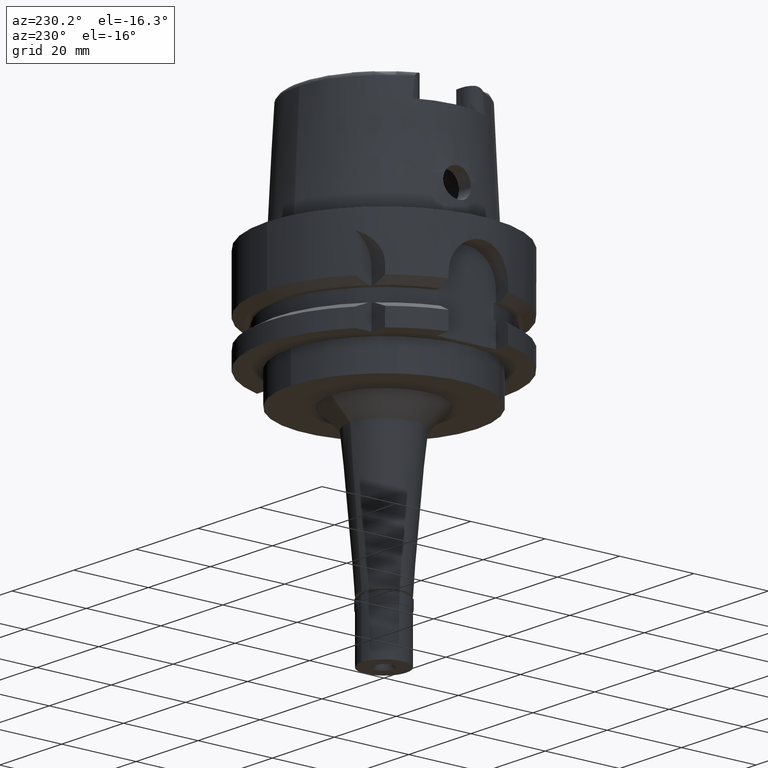
[diagram: clean part render]
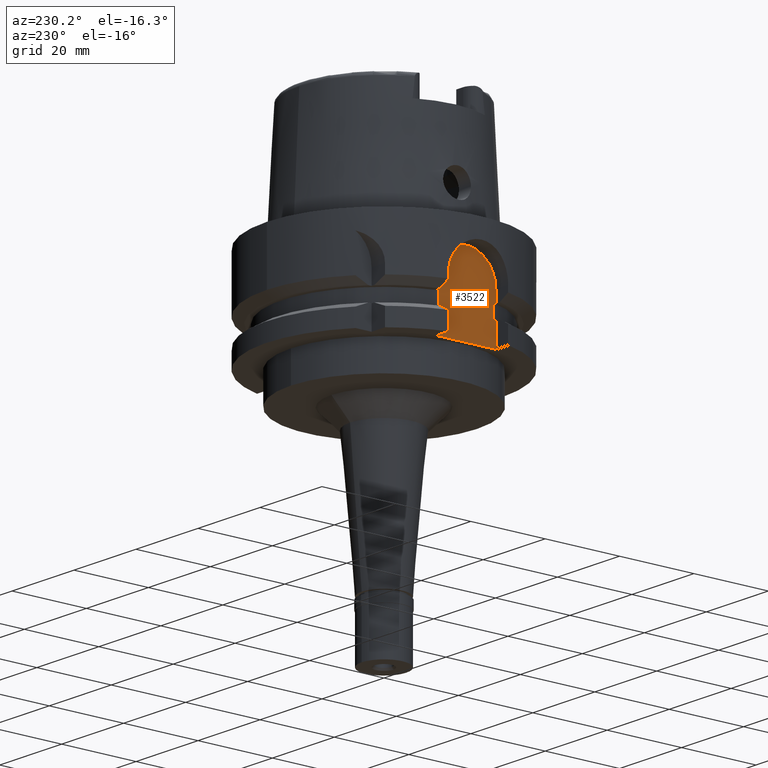
[diagram: same view with one face highlighted and labeled with its STEP entity id]
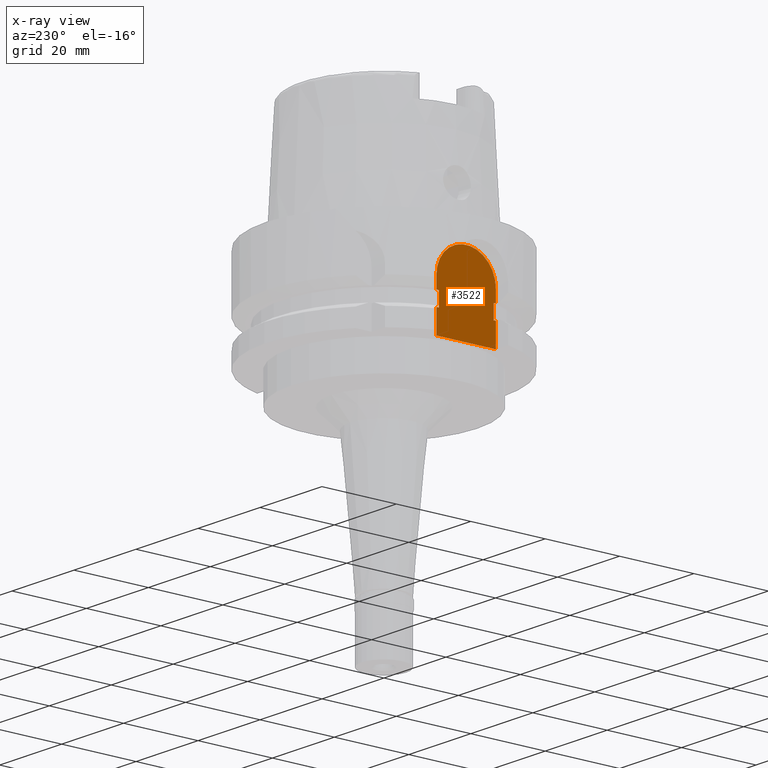
[diagram: x-ray of the same camera — body ghosted, the highlighted face saturated]
A machine part, auxiliary view. The second image highlights one B-rep face of the part: STEP entity #3522.
The next image is the same camera in x-ray: the body ghosted, the highlighted face saturated — about 0% of this face is hidden behind the body in this view.
In plain terms, the highlighted planar face has unit normal (1, 0, 0).
Its self-contained STEP definition (entity closure, byte-faithful):
#97 = VERTEX_POINT ( 'NONE', #2895 ) ;
#108 = DIRECTION ( 'NONE',  ( 0.0000000000000000000, 1.000000000000000000, 0.0000000000000000000 ) ) ;
#153 = LINE ( 'NONE', #567, #4409 ) ;
#154 = VECTOR ( 'NONE', #108, 1000.000000000000000 ) ;
#200 = DIRECTION ( 'NONE',  ( 0.0000000000000000000, 0.0000000000000000000, -1.000000000000000000 ) ) ;
#393 = EDGE_CURVE ( 'NONE', #975, #1084, #2613, .T. ) ;
#447 = DIRECTION ( 'NONE',  ( 0.0000000000000000000, 0.0000000000000000000, -1.000000000000000000 ) ) ;
#463 = LINE ( 'NONE', #3914, #5529 ) ;
#537 = LINE ( 'NONE', #2266, #5049 ) ;
#564 = EDGE_CURVE ( 'NONE', #1301, #1384, #3347, .T. ) ;
#567 = CARTESIAN_POINT ( 'NONE',  ( -26.50000000000000000, 7.348469228349999938, -19.87500000000000000 ) ) ;
#617 = ORIENTED_EDGE ( 'NONE', *, *, #2626, .T. ) ;
#662 = CARTESIAN_POINT ( 'NONE',  ( -26.50000000000000000, -8.000000000000000000, -16.12500000000000000 ) ) ;
#920 = ORIENTED_EDGE ( 'NONE', *, *, #3317, .T. ) ;
#946 = VERTEX_POINT ( 'NONE', #1930 ) ;
#975 = VERTEX_POINT ( 'NONE', #1510 ) ;
#982 = DIRECTION ( 'NONE',  ( 5.998158823386000371E-14, 1.000000000000000000, 1.090574331525000085E-14 ) ) ;
#995 = CARTESIAN_POINT ( 'NONE',  ( -26.50000000000000000, -7.348469228349999938, -19.87500000000000000 ) ) ;
#1024 = EDGE_CURVE ( 'NONE', #975, #3388, #1163, .T. ) ;
#1046 = LINE ( 'NONE', #995, #1664 ) ;
#1084 = VERTEX_POINT ( 'NONE', #4914 ) ;
#1163 = CIRCLE ( 'NONE', #4724, 8.000000000000000000 ) ;
#1301 = VERTEX_POINT ( 'NONE', #3369 ) ;
#1379 = ORIENTED_EDGE ( 'NONE', *, *, #564, .T. ) ;
#1384 = VERTEX_POINT ( 'NONE', #5097 ) ;
#1429 = VECTOR ( 'NONE', #447, 1000.000000000000000 ) ;
#1431 = EDGE_CURVE ( 'NONE', #97, #5131, #2609, .T. ) ;
#1510 = CARTESIAN_POINT ( 'NONE',  ( -26.50000000000000000, 8.000000000000000000, -13.00000000000000000 ) ) ;
#1558 = DIRECTION ( 'NONE',  ( 0.0000000000000000000, 1.000000000000000000, 0.0000000000000000000 ) ) ;
#1664 = VECTOR ( 'NONE', #2785, 1000.000000000000000 ) ;
#1708 = ORIENTED_EDGE ( 'NONE', *, *, #1024, .F. ) ;
#1839 = VECTOR ( 'NONE', #2406, 1000.000000000000000 ) ;
#1843 = DIRECTION ( 'NONE',  ( -5.998158823386000371E-14, 1.000000000000000000, -1.090574331525000085E-14 ) ) ;
#1873 = DIRECTION ( 'NONE',  ( -5.998158823386000371E-14, 1.000000000000000000, 0.0000000000000000000 ) ) ;
#1901 = LINE ( 'NONE', #2419, #3682 ) ;
#1930 = CARTESIAN_POINT ( 'NONE',  ( -26.50000000000000000, 7.348469228349999938, -16.12500000000000000 ) ) ;
#2099 = CARTESIAN_POINT ( 'NONE',  ( -26.50000000000000000, 0.0000000000000000000, 0.0000000000000000000 ) ) ;
#2125 = CARTESIAN_POINT ( 'NONE',  ( -26.50000000000000000, -7.348469228349999938, -19.87500000000000000 ) ) ;
#2185 = VERTEX_POINT ( 'NONE', #3911 ) ;
#2266 = CARTESIAN_POINT ( 'NONE',  ( -26.50000000000000000, -8.000000000000000000, -19.87500000000000000 ) ) ;
#2394 = VERTEX_POINT ( 'NONE', #2125 ) ;
#2406 = DIRECTION ( 'NONE',  ( 0.0000000000000000000, 0.0000000000000000000, 1.000000000000000000 ) ) ;
#2419 = CARTESIAN_POINT ( 'NONE',  ( -26.50000000000000000, 7.348469228349999938, -16.12500000000000000 ) ) ;
#2469 = ORIENTED_EDGE ( 'NONE', *, *, #1431, .F. ) ;
#2478 = EDGE_CURVE ( 'NONE', #2394, #5131, #1046, .T. ) ;
#2496 = ORIENTED_EDGE ( 'NONE', *, *, #5127, .T. ) ;
#2554 = EDGE_CURVE ( 'NONE', #946, #2185, #4101, .T. ) ;
#2607 = ORIENTED_EDGE ( 'NONE', *, *, #2478, .T. ) ;
#2609 = LINE ( 'NONE', #4894, #4089 ) ;
#2613 = LINE ( 'NONE', #4349, #1429 ) ;
#2626 = EDGE_CURVE ( 'NONE', #5597, #2394, #537, .T. ) ;
#2785 = DIRECTION ( 'NONE',  ( 0.0000000000000000000, 0.0000000000000000000, 1.000000000000000000 ) ) ;
#2887 = VECTOR ( 'NONE', #3401, 1000.000000000000000 ) ;
#2895 = CARTESIAN_POINT ( 'NONE',  ( -26.50000000000000000, -8.000000000000000000, -16.12500000000000000 ) ) ;
#3021 = DIRECTION ( 'NONE',  ( 0.0000000000000000000, 0.0000000000000000000, 1.000000000000000000 ) ) ;
#3172 = ORIENTED_EDGE ( 'NONE', *, *, #393, .T. ) ;
#3180 = LINE ( 'NONE', #3551, #154 ) ;
#3317 = EDGE_CURVE ( 'NONE', #2185, #1301, #153, .T. ) ;
#3347 = LINE ( 'NONE', #3674, #2887 ) ;
#3352 = EDGE_CURVE ( 'NONE', #946, #1084, #1901, .T. ) ;
#3369 = CARTESIAN_POINT ( 'NONE',  ( -26.50000000000000000, 8.000000000000000000, -19.87500000000000000 ) ) ;
#3388 = VERTEX_POINT ( 'NONE', #4134 ) ;
#3401 = DIRECTION ( 'NONE',  ( 0.0000000000000000000, 0.0000000000000000000, -1.000000000000000000 ) ) ;
#3522 = ADVANCED_FACE ( 'NONE', ( #4707 ), #3732, .F. ) ;
#3551 = CARTESIAN_POINT ( 'NONE',  ( -26.50000000000000000, -8.000000000000000000, -26.00000000000000000 ) ) ;
#3655 = ORIENTED_EDGE ( 'NONE', *, *, #2554, .T. ) ;
#3669 = CARTESIAN_POINT ( 'NONE',  ( -26.50000000000000000, 7.348469228349999938, -16.12500000000000000 ) ) ;
#3674 = CARTESIAN_POINT ( 'NONE',  ( -26.50000000000000000, 8.000000000000000000, -19.87500000000000000 ) ) ;
#3682 = VECTOR ( 'NONE', #1843, 1000.000000000000000 ) ;
#3724 = LINE ( 'NONE', #662, #1839 ) ;
#3732 = PLANE ( 'NONE',  #5344 ) ;
#3778 = CARTESIAN_POINT ( 'NONE',  ( -26.50000000000000000, -7.348469228349999938, -16.12500000000000000 ) ) ;
#3784 = CARTESIAN_POINT ( 'NONE',  ( -26.50000000000000000, -8.000000000000000000, -26.00000000000000000 ) ) ;
#3911 = CARTESIAN_POINT ( 'NONE',  ( -26.50000000000000000, 7.348469228349999938, -19.87500000000000000 ) ) ;
#3914 = CARTESIAN_POINT ( 'NONE',  ( -26.50000000000000000, -8.000000000000000000, -26.00000000000000000 ) ) ;
#3917 = ORIENTED_EDGE ( 'NONE', *, *, #4334, .T. ) ;
#4053 = DIRECTION ( 'NONE',  ( 0.0000000000000000000, 1.000000000000000000, 0.0000000000000000000 ) ) ;
#4080 = VERTEX_POINT ( 'NONE', #3784 ) ;
#4089 = VECTOR ( 'NONE', #982, 1000.000000000000000 ) ;
#4101 = LINE ( 'NONE', #3669, #4405 ) ;
#4108 = DIRECTION ( 'NONE',  ( 1.000000000000000000, 0.0000000000000000000, 0.0000000000000000000 ) ) ;
#4134 = CARTESIAN_POINT ( 'NONE',  ( -26.50000000000000000, -8.000000000000000000, -13.00000000000000000 ) ) ;
#4141 = ORIENTED_EDGE ( 'NONE', *, *, #3352, .F. ) ;
#4227 = EDGE_CURVE ( 'NONE', #4080, #1384, #3180, .T. ) ;
#4334 = EDGE_CURVE ( 'NONE', #4080, #5597, #463, .T. ) ;
#4349 = CARTESIAN_POINT ( 'NONE',  ( -26.50000000000000000, 8.000000000000000000, -13.00000000000000000 ) ) ;
#4405 = VECTOR ( 'NONE', #200, 1000.000000000000000 ) ;
#4409 = VECTOR ( 'NONE', #1873, 1000.000000000000000 ) ;
#4587 = EDGE_LOOP ( 'NONE', ( #3917, #617, #2607, #2469, #2496, #1708, #3172, #4141, #3655, #920, #1379, #5195 ) ) ;
#4707 = FACE_OUTER_BOUND ( 'NONE', #4587, .T. ) ;
#4724 = AXIS2_PLACEMENT_3D ( 'NONE', #5354, #4108, #4053 ) ;
#4894 = CARTESIAN_POINT ( 'NONE',  ( -26.50000000000000000, -8.000000000000000000, -16.12500000000000000 ) ) ;
#4914 = CARTESIAN_POINT ( 'NONE',  ( -26.50000000000000000, 8.000000000000000000, -16.12500000000000000 ) ) ;
#4992 = CARTESIAN_POINT ( 'NONE',  ( -26.50000000000000000, -8.000000000000000000, -19.87500000000000000 ) ) ;
#5049 = VECTOR ( 'NONE', #5342, 1000.000000000000000 ) ;
#5097 = CARTESIAN_POINT ( 'NONE',  ( -26.50000000000000000, 8.000000000000000000, -26.00000000000000000 ) ) ;
#5127 = EDGE_CURVE ( 'NONE', #97, #3388, #3724, .T. ) ;
#5131 = VERTEX_POINT ( 'NONE', #3778 ) ;
#5195 = ORIENTED_EDGE ( 'NONE', *, *, #4227, .F. ) ;
#5342 = DIRECTION ( 'NONE',  ( 6.543445989147999960E-14, 1.000000000000000000, 0.0000000000000000000 ) ) ;
#5344 = AXIS2_PLACEMENT_3D ( 'NONE', #2099, #5484, #1558 ) ;
#5354 = CARTESIAN_POINT ( 'NONE',  ( -26.50000000000000000, 0.0000000000000000000, -13.00000000000000000 ) ) ;
#5484 = DIRECTION ( 'NONE',  ( 1.000000000000000000, 0.0000000000000000000, 0.0000000000000000000 ) ) ;
#5529 = VECTOR ( 'NONE', #3021, 1000.000000000000000 ) ;
#5597 = VERTEX_POINT ( 'NONE', #4992 ) ;